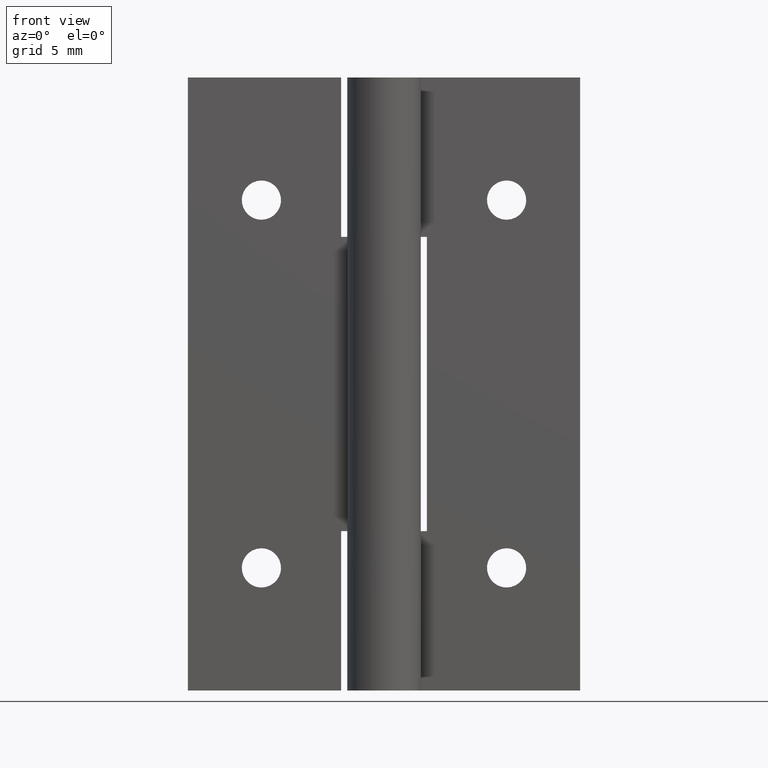
[diagram: clean part render]
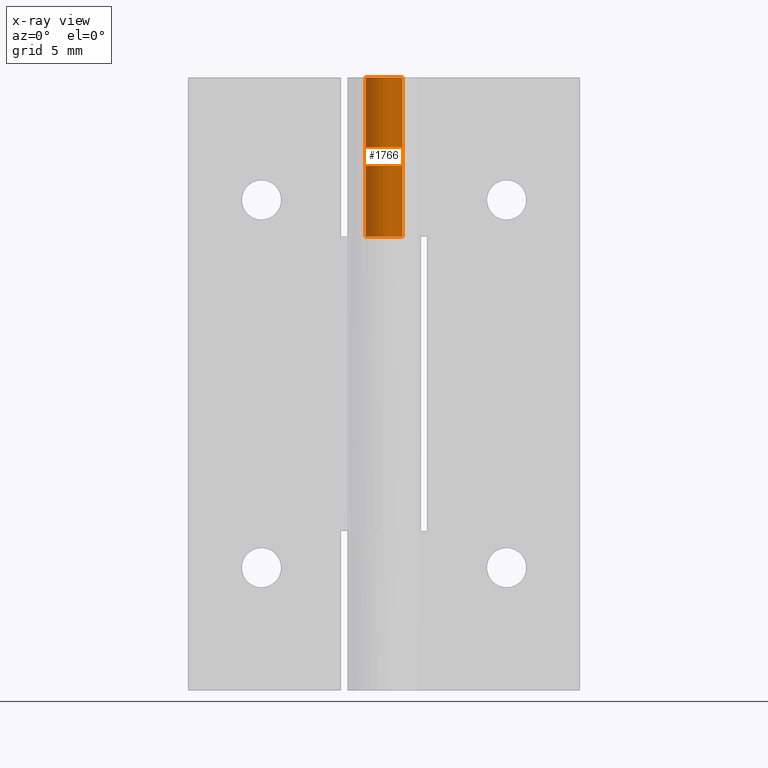
[diagram: x-ray — body ghosted, one internal face saturated and labeled with its STEP entity id]
A machine part, front view, then the same camera in x-ray: the body is ghosted and one INTERNAL B-rep face — a face not visible from any outside direction — is saturated and labeled: STEP entity #1766.
In plain terms, the highlighted face is a freeform B-spline surface patch.
Its self-contained STEP definition (entity closure, byte-faithful):
#1326=CARTESIAN_POINT('',(1.313154598666890,0.725000000000000,37.0));
#1327=VERTEX_POINT('',#1326);
#1328=CARTESIAN_POINT('',(0.0,1.500000000000000,37.0));
#1329=VERTEX_POINT('',#1328);
#1330=CARTESIAN_POINT('',(1.313154598666890,0.725000000000000,37.0));
#1331=CARTESIAN_POINT('',(1.866715792252885,-0.277636451035838,37.0));
#1332=CARTESIAN_POINT('',(1.045325295443045,-1.075776476182162,37.0));
#1333=CARTESIAN_POINT('',(0.223934798633207,-1.873916501328486,37.0));
#1334=CARTESIAN_POINT('',(-0.762397534098844,-1.291801068276382,37.0));
#1335=CARTESIAN_POINT('',(-1.748729866830896,-0.709685635224277,37.0));
#1336=CARTESIAN_POINT('',(-1.447014444021651,0.395157182387861,37.0));
#1337=CARTESIAN_POINT('',(-1.145299021212405,1.500000000000000,37.0));
#1338=CARTESIAN_POINT('',(0.0,1.500000000000000,37.0));
#1346=(BOUNDED_CURVE()B_SPLINE_CURVE(2,(#1330,#1331,#1332,#1333,#1334,#1335,#1336,#1337,#1338),.UNSPECIFIED.,.F.,.U.)B_SPLINE_CURVE_WITH_KNOTS((3,2,2,2,3),(0.0,0.250000000000000,0.500000000000000,0.750000000000000,1.0),.UNSPECIFIED.)CURVE()GEOMETRIC_REPRESENTATION_ITEM()RATIONAL_B_SPLINE_CURVE((1.0,0.794807562115481,1.0,0.794807562115481,1.0,0.794807562115481,1.0,0.794807562115481,1.0))REPRESENTATION_ITEM(''));
#1347=EDGE_CURVE('',#1327,#1329,#1346,.T.);
#1502=CARTESIAN_POINT('',(1.313154598666890,0.725000000000000,50.0));
#1503=VERTEX_POINT('',#1502);
#1504=CARTESIAN_POINT('',(0.0,1.500000000000000,50.0));
#1505=VERTEX_POINT('',#1504);
#1506=CARTESIAN_POINT('',(1.313154598666890,0.725000000000000,50.0));
#1507=CARTESIAN_POINT('',(1.866715792252885,-0.277636451035838,50.000000000000007));
#1508=CARTESIAN_POINT('',(1.045325295443045,-1.075776476182162,50.0));
#1509=CARTESIAN_POINT('',(0.223934798633207,-1.873916501328486,50.000000000000007));
#1510=CARTESIAN_POINT('',(-0.762397534098844,-1.291801068276382,50.0));
#1511=CARTESIAN_POINT('',(-1.748729866830896,-0.709685635224277,50.000000000000007));
#1512=CARTESIAN_POINT('',(-1.447014444021651,0.395157182387861,50.0));
#1513=CARTESIAN_POINT('',(-1.145299021212405,1.500000000000000,50.000000000000007));
#1514=CARTESIAN_POINT('',(0.0,1.500000000000000,50.0));
#1522=(BOUNDED_CURVE()B_SPLINE_CURVE(2,(#1506,#1507,#1508,#1509,#1510,#1511,#1512,#1513,#1514),.UNSPECIFIED.,.F.,.U.)B_SPLINE_CURVE_WITH_KNOTS((3,2,2,2,3),(0.0,0.250000000000000,0.500000000000000,0.750000000000000,1.0),.UNSPECIFIED.)CURVE()GEOMETRIC_REPRESENTATION_ITEM()RATIONAL_B_SPLINE_CURVE((1.0,0.794807562115481,1.0,0.794807562115481,1.0,0.794807562115481,1.0,0.794807562115481,1.0))REPRESENTATION_ITEM(''));
#1523=EDGE_CURVE('',#1503,#1505,#1522,.T.);
#1692=CARTESIAN_POINT('',(1.313154598666890,0.725000000000000,50.0));
#1693=CARTESIAN_POINT('',(1.313154598666890,0.725000000000000,37.0));
#1694=QUASI_UNIFORM_CURVE('',1,(#1692,#1693),.UNSPECIFIED.,.F.,.U.);
#1695=EDGE_CURVE('',#1503,#1327,#1694,.T.);
#1734=CARTESIAN_POINT('',(0.013089803247560,1.499942884596257,50.325000000000010));
#1735=CARTESIAN_POINT('',(0.013089803247560,1.499942884596257,36.666874999999990));
#1736=CARTESIAN_POINT('',(-1.795740308696874,1.515728305839138,50.325000000000010));
#1737=CARTESIAN_POINT('',(-1.795740308696874,1.515728305839138,36.666874999999990));
#1738=CARTESIAN_POINT('',(-1.476447697697894,-0.264768192883109,50.325000000000010));
#1739=CARTESIAN_POINT('',(-1.476447697697894,-0.264768192883109,36.666874999999990));
#1740=CARTESIAN_POINT('',(-1.157155086698915,-2.045264691605356,50.325000000000010));
#1741=CARTESIAN_POINT('',(-1.157155086698915,-2.045264691605356,36.666874999999990));
#1742=CARTESIAN_POINT('',(0.533476142722314,-1.401928388023483,50.325000000000010));
#1743=CARTESIAN_POINT('',(0.533476142722314,-1.401928388023483,36.666874999999990));
#1744=CARTESIAN_POINT('',(2.224107372143544,-0.758592084441610,50.325000000000010));
#1745=CARTESIAN_POINT('',(2.224107372143544,-0.758592084441610,36.666874999999990));
#1746=CARTESIAN_POINT('',(1.278960246531139,0.783747847073922,50.325000000000010));
#1747=CARTESIAN_POINT('',(1.278960246531139,0.783747847073922,36.666874999999990));
#1755=(BOUNDED_SURFACE()B_SPLINE_SURFACE(1,2,((#1734,#1736,#1738,#1740,#1742,#1744,#1746),(#1735,#1737,#1739,#1741,#1743,#1745,#1747)),.UNSPECIFIED.,.F.,.F.,.U.)B_SPLINE_SURFACE_WITH_KNOTS((2,2),(3,2,2,3),(0.0,13.658125000000020),(0.0,2.819123256080202,5.638246512160404,8.457369768240607),.UNSPECIFIED.)GEOMETRIC_REPRESENTATION_ITEM()RATIONAL_B_SPLINE_SURFACE(((1.0,0.638320090924328,1.0,0.638320090924328,1.0,0.638320090924328,1.0),(1.0,0.638320090924328,1.0,0.638320090924328,1.0,0.638320090924328,1.0)))REPRESENTATION_ITEM('')SURFACE());
#1756=ORIENTED_EDGE('',*,*,#1695,.T.);
#1757=ORIENTED_EDGE('',*,*,#1347,.T.);
#1758=CARTESIAN_POINT('',(0.0,1.500000000000000,50.0));
#1759=CARTESIAN_POINT('',(0.0,1.500000000000000,37.0));
#1760=QUASI_UNIFORM_CURVE('',1,(#1758,#1759),.UNSPECIFIED.,.F.,.U.);
#1761=EDGE_CURVE('',#1505,#1329,#1760,.T.);
#1762=ORIENTED_EDGE('',*,*,#1761,.F.);
#1763=ORIENTED_EDGE('',*,*,#1523,.F.);
#1764=EDGE_LOOP('',(#1756,#1757,#1762,#1763));
#1765=FACE_OUTER_BOUND('',#1764,.T.);
#1766=ADVANCED_FACE('',(#1765),#1755,.F.);